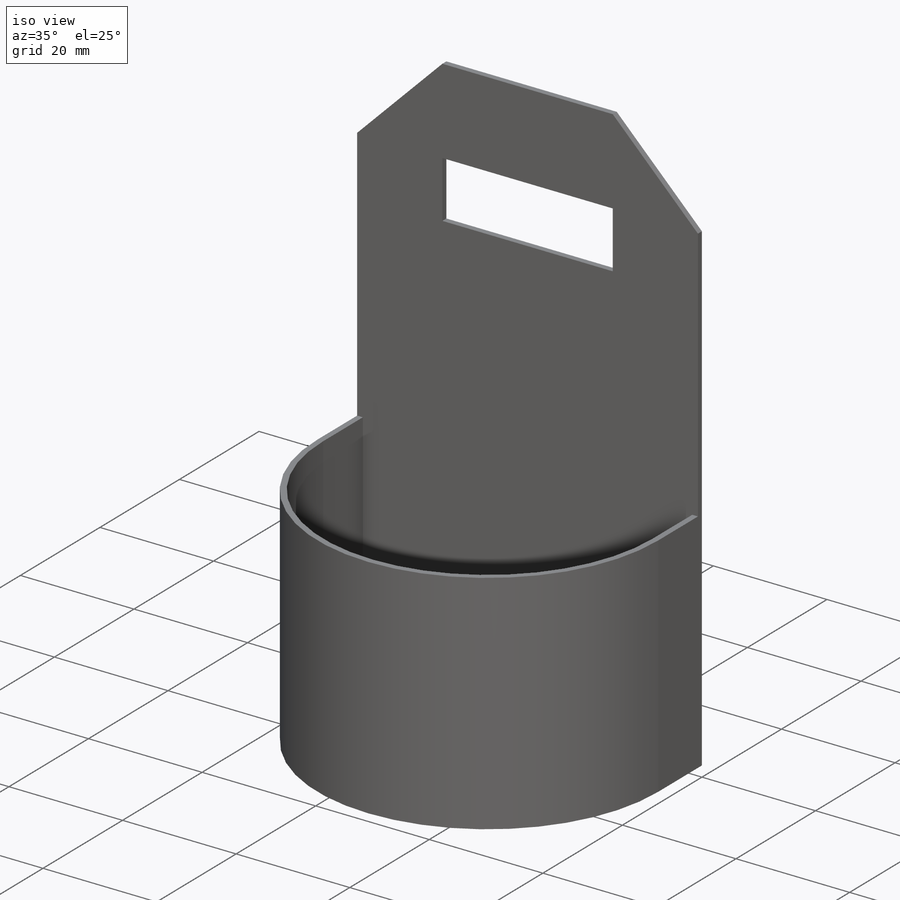
[diagram: iso view]
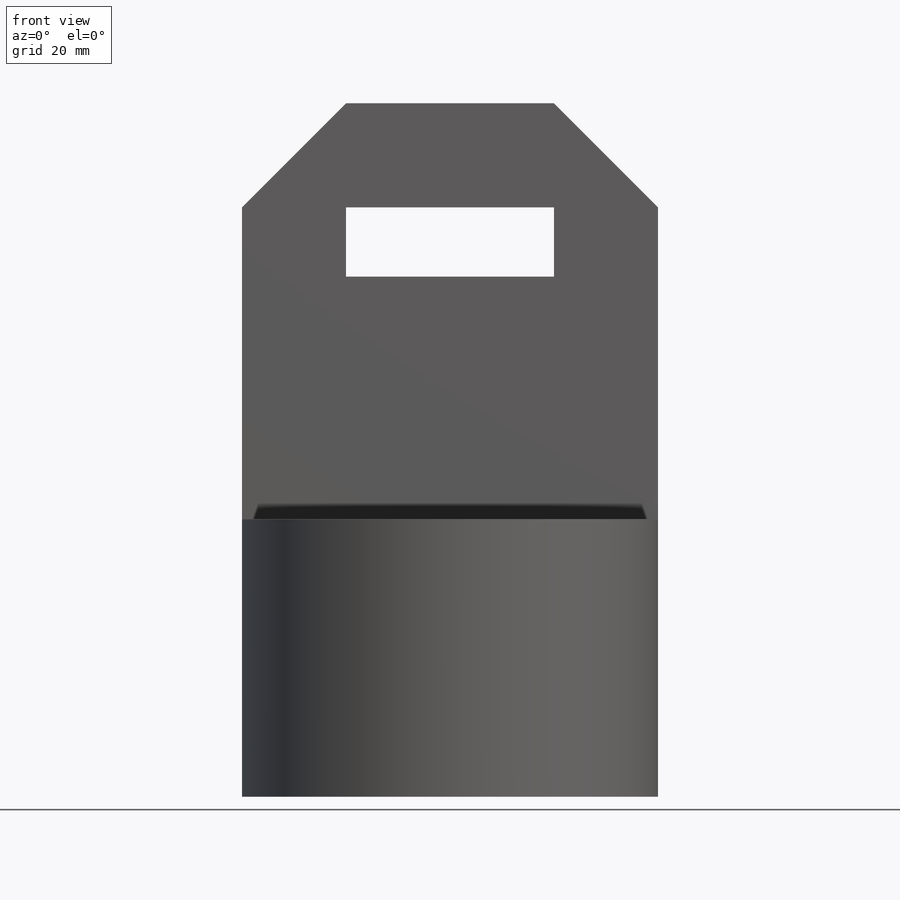
[diagram: front view]
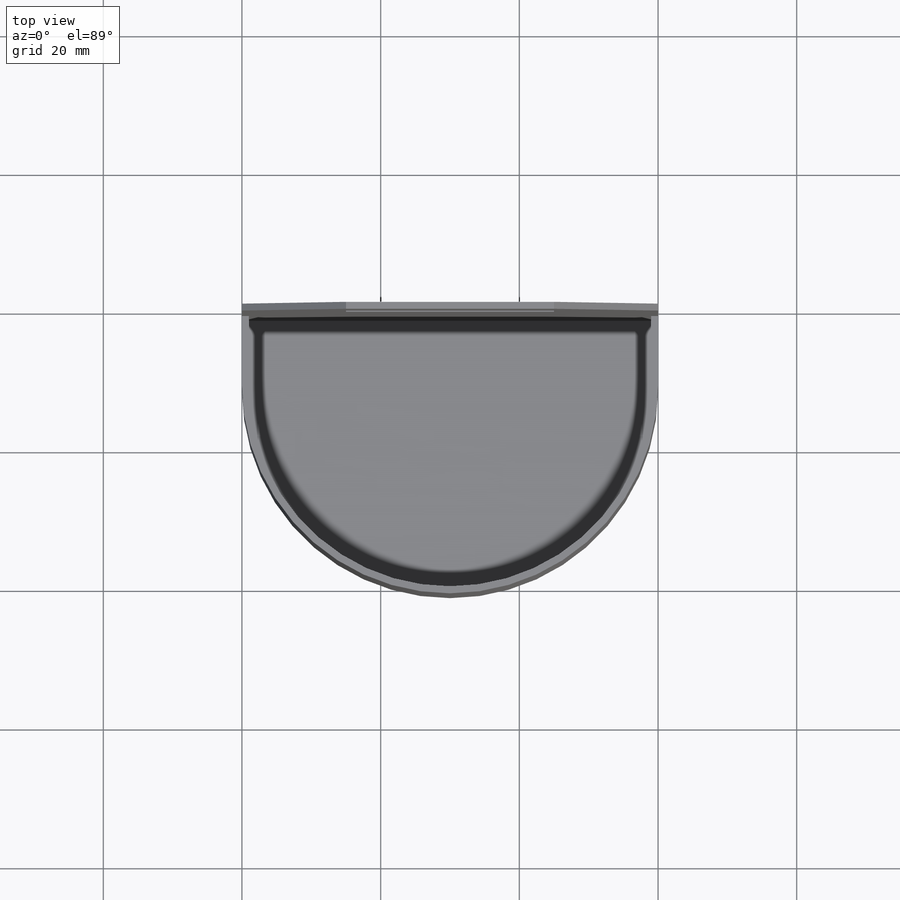
[diagram: top view]
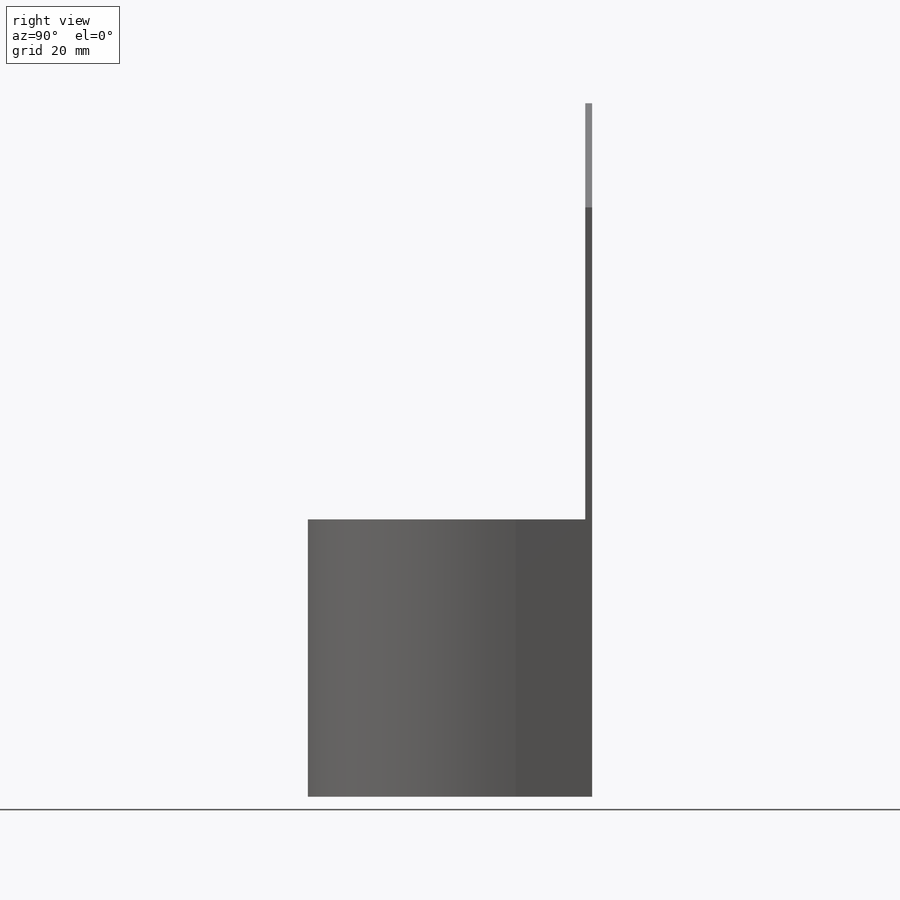
[diagram: right view]
SOLIDWORKS PART (.sldprt)
format: sldprt  version: not decoded by parser v0  size: 135,680 bytes
history: native  units: mm
features: sketch x2, extrude x2, material x1, shell x1 (+16 scaffold rows collapsed)
feature tree (22):
  scaffold x16  (default folders/planes/origin — collapsed)
  material  "Material <not specified>"
  sketch  "Sketch1"  dims[D1=60.0mm D2=100.0mm D5=15.0mm D6=15.0mm D3=10.0mm D4=15.0mm D7=15.0mm]
  extrude  "Extrude1"  Depth=1mm
  sketch  "Sketch2"  dims[D2=30.0mm D1=10.0mm]
  extrude  "Extrude2"  Depth=40mm
  shell  "Shell1"  Thickness=1mm
decode coverage: 5 of 5 modeling features carry decoded parameters
note: suppression state not decoded; provenance and decode notes live in map.json
